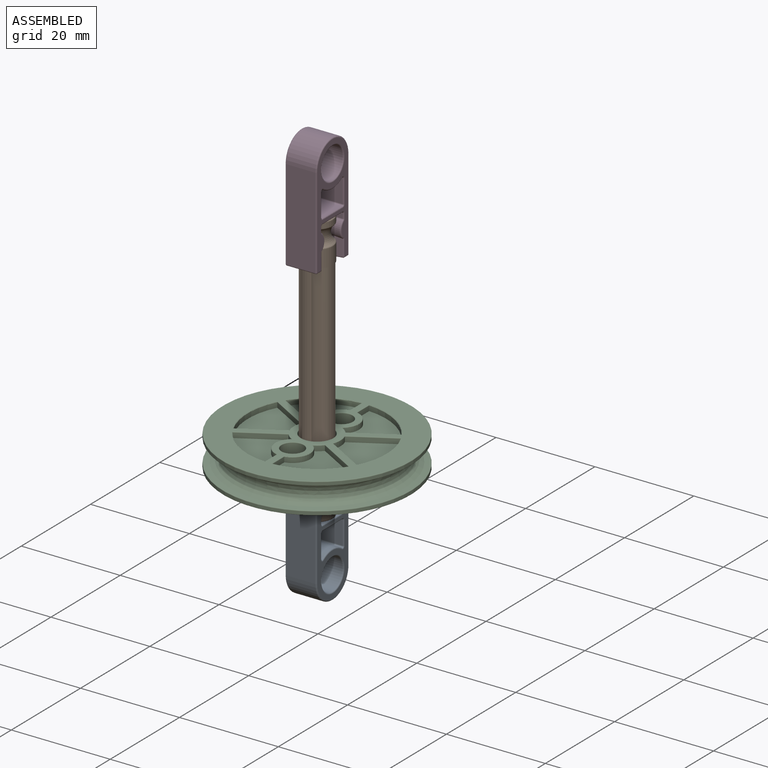
[diagram: assembled view]
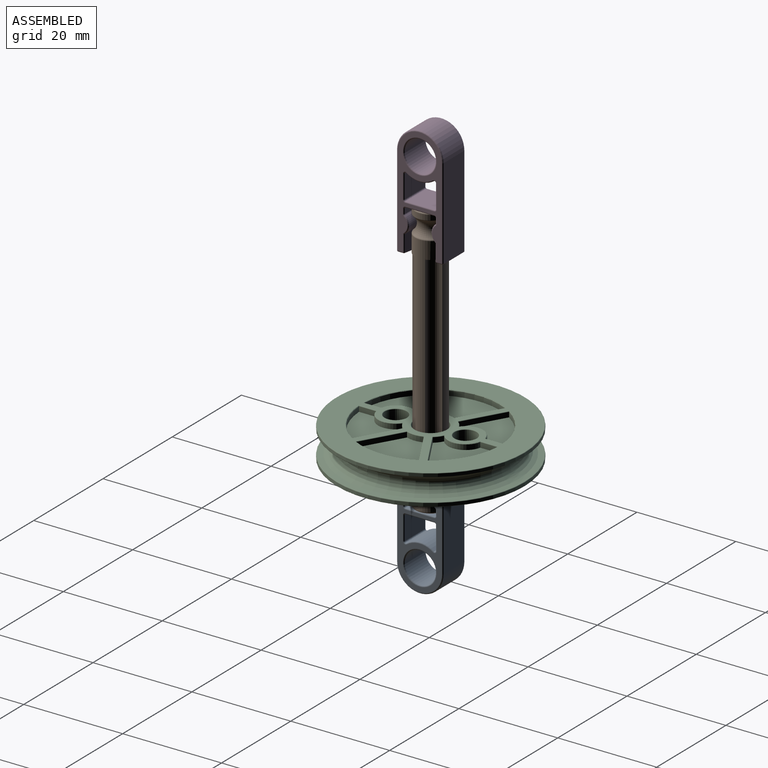
[diagram: assembled view, second angle]
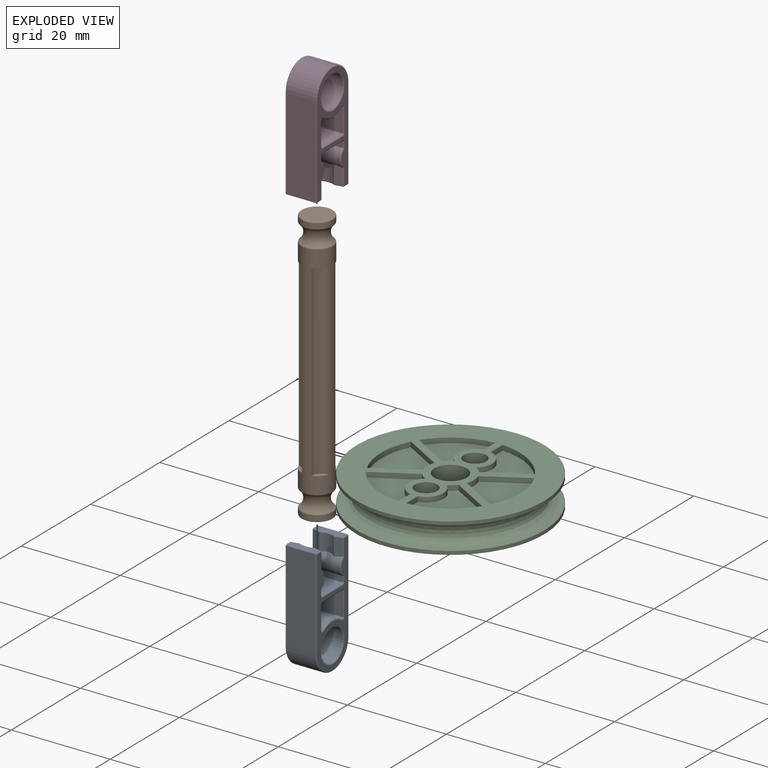
[diagram: exploded view]
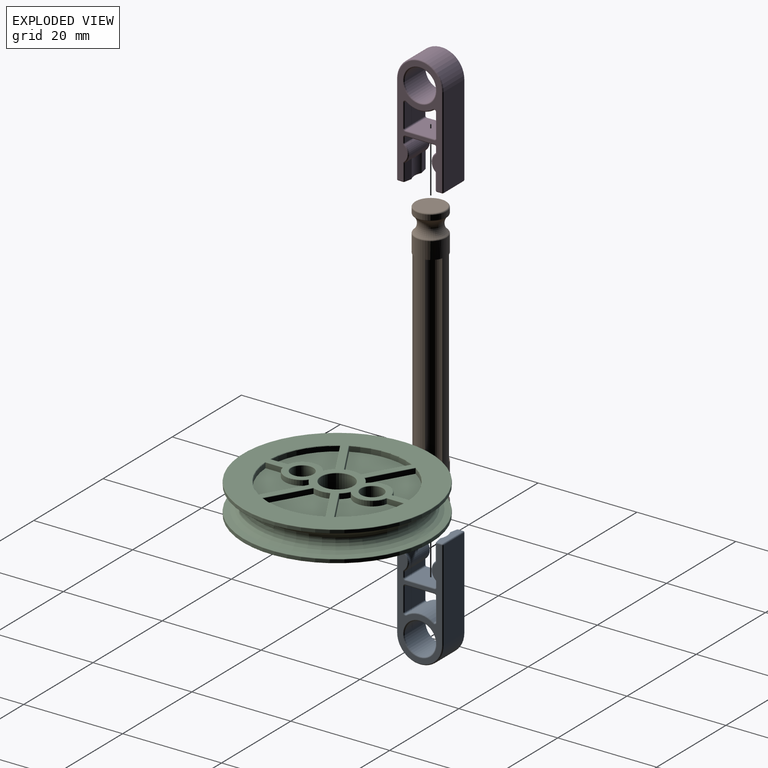
[diagram: exploded view, second angle]
ASSEMBLY  parts=4 mates=2
PART A: 107 faces, bbox 23.7x10.2x6.4 mm
  f0: cylinder r=0.25mm len=4.74mm, axis (1,0,0), area 1.9mm2, adj f1,f7,f11,f12
  f1: torus R=0.51mm, axis (0,0,1), area 0.3mm2, adj f0,f2,f10,f12
  f2: torus R=4.45mm, axis (0,0,-1), area 2.3mm2, adj f1,f3,f9,f12
  f3: torus R=0.51mm, axis (0,0,1), area 0.3mm2, adj f2,f4,f8,f12
  f4: cylinder r=0.25mm len=4.74mm, axis (-1,0,0), area 1.9mm2, adj f3,f5,f12,f97
  f5: torus R=0.51mm, axis (0,0,1), area 0.2mm2, adj f4,f6,f12,f21
  f6: cylinder r=0.25mm len=5.84mm, axis (0,-1,0), area 2.3mm2, adj f5,f7,f12,f22
  f7: torus R=0.51mm, axis (0,0,1), area 0.2mm2, adj f0,f6,f12,f23
  f8: cylinder r=0.25mm len=5.84mm, axis (0,0,1), area 3.3mm2, adj f3,f9,f18,f97
  f9: cylinder r=4.7mm len=5.84mm, axis (0,0,1), area 34.6mm2, adj f2,f8,f10,f19
  f10: cylinder r=0.25mm len=5.84mm, axis (0,0,1), area 3.3mm2, adj f1,f9,f11,f20
  f11: plane 5.84x4.74mm, normal (0,1,0), area 27.7mm2, adj f0,f10,f13,f23
  f12: plane 22.8x8.89mm, normal (0,0,-1), area 68.1mm2, adj f0,f1,f2,f3,f4,f5,f6,f7
  f13: cylinder r=0.25mm len=4.74mm, axis (-1,0,0), area 1.9mm2, adj f11,f14,f20,f24
  f14: torus R=0.51mm, axis (0,0,-1), area 0.2mm2, adj f13,f15,f23,f24
  f15: cylinder r=0.25mm len=5.84mm, axis (0,1,0), area 2.3mm2, adj f14,f16,f22,f24
  f16: torus R=0.51mm, axis (0,0,-1), area 0.2mm2, adj f15,f17,f21,f24
  f17: cylinder r=0.25mm len=4.74mm, axis (1,0,0), area 1.9mm2, adj f16,f18,f24,f97
  f18: torus R=0.51mm, axis (0,0,-1), area 0.3mm2, adj f8,f17,f19,f24
  f19: torus R=4.45mm, axis (0,0,1), area 2.3mm2, adj f9,f18,f20,f24
  f20: torus R=0.51mm, axis (0,0,-1), area 0.3mm2, adj f10,f13,f19,f24
  f21: cylinder r=0.25mm len=5.84mm, axis (0,0,1), area 2.3mm2, adj f5,f16,f22,f97
  f22: plane 5.84x5.84mm, normal (1,0,0), area 34.1mm2, adj f6,f15,f21,f23
  f23: cylinder r=0.25mm len=5.84mm, axis (0,0,1), area 2.3mm2, adj f7,f11,f14,f22
  f24: plane 22.8x8.89mm, normal (0,0,1), area 68.1mm2, adj f13,f14,f15,f16,f17,f18,f19,f20
  f25: torus R=3.43mm, axis (0,0,1), area 8.2mm2, adj f12,f26
  f26: cylinder r=3.17mm len=6.35mm, axis (0,0,1), area 116.5mm2, adj f25,f27
  f27: torus R=3.43mm, axis (0,0,-1), area 8.2mm2, adj f24,f26
  f28: sphere r=0.25mm, area 0.1mm2, adj f63,f77,f78
  f29: sphere r=0.25mm, area 0.1mm2, adj f30,f45,f65
  f30: cylinder r=0.25mm len=3.37mm, axis (-1,0,0), area 1.2mm2, adj f12,f29,f31,f100
  f31: torus R=0.51mm, axis (0,0,-1), area 0mm2, adj f12,f30,f32,f81,f100
  f32: torus R=1.97mm, axis (0,0,-1), area 1.5mm2, adj f12,f31,f33,f82
  f33: torus R=0.51mm, axis (0,0,-1), area 0.1mm2, adj f12,f32,f34,f83
  f34: cylinder r=0.25mm len=1mm, axis (-1,0,0), area 0.4mm2, adj f12,f33,f35,f84
  f35: torus R=0.51mm, axis (0,0,-1), area 0.2mm2, adj f12,f34,f36,f85
  f36: cylinder r=0.25mm len=5.84mm, axis (0,1,0), area 2.3mm2, adj f12,f35,f37,f86
  f37: torus R=0.51mm, axis (0,0,-1), area 0.2mm2, adj f12,f36,f38,f88
  f38: cylinder r=0.25mm len=1mm, axis (1,0,0), area 0.4mm2, adj f12,f37,f39,f89
  f39: torus R=0.51mm, axis (0,0,-1), area 0.1mm2, adj f12,f38,f40,f91
  f40: torus R=1.97mm, axis (0,0,-1), area 1.5mm2, adj f12,f39,f41,f92
  f41: torus R=0.51mm, axis (0,0,-1), area 0mm2, adj f12,f40,f60,f87,f90
  f42: sphere r=0.25mm, area 0.1mm2, adj f46,f51,f63
  f43: sphere r=0.25mm, area 0.1mm2, adj f52,f61,f62
  f44: sphere r=0.25mm, area 0.1mm2, adj f45,f46,f55
  f45: cylinder r=0.25mm len=1.06mm, axis (0,-1,0), area 0.4mm2, adj f12,f29,f44,f95
  f46: cylinder r=0.25mm len=5.84mm, axis (0,0,-1), area 2.3mm2, adj f42,f44,f80,f95
  f47: sphere r=0.25mm, area 0.1mm2, adj f54,f59,f60
  f48: sphere r=0.25mm, area 0.1mm2, adj f49,f52,f58
  f49: cylinder r=0.25mm len=18.35mm, axis (1,0,0), area 7.3mm2, adj f24,f48,f50,f104
  f50: torus R=4.45mm, axis (0,0,1), area 5.8mm2, adj f24,f49,f51,f106
  f51: cylinder r=0.25mm len=18.35mm, axis (-1,0,0), area 7.3mm2, adj f24,f42,f50,f80
  f52: cylinder r=0.25mm len=1.06mm, axis (0,-1,0), area 0.4mm2, adj f24,f43,f48,f96
  f53: sphere r=0.25mm, area 0.1mm2, adj f54,f57,f58
  f54: cylinder r=0.25mm len=1.06mm, axis (0,1,0), area 0.4mm2, adj f12,f47,f53,f96
  f55: cylinder r=0.25mm len=18.35mm, axis (1,0,0), area 7.3mm2, adj f12,f44,f56,f80
  f56: torus R=4.45mm, axis (0,0,-1), area 5.8mm2, adj f12,f55,f57,f106
  f57: cylinder r=0.25mm len=18.35mm, axis (-1,0,0), area 7.3mm2, adj f12,f53,f56,f104
  f58: cylinder r=0.25mm len=5.84mm, axis (0,0,1), area 2.3mm2, adj f48,f53,f96,f104
  f59: cylinder r=0.25mm len=1.57mm, axis (0,0.2,0.98), area 0.6mm2, adj f47,f64,f90,f96
  f60: cylinder r=0.25mm len=3.37mm, axis (1,0,0), area 1.2mm2, adj f12,f41,f47,f90
  f61: cylinder r=0.25mm len=3.37mm, axis (-1,0,0), area 1.2mm2, adj f24,f43,f66,f94
  f62: cylinder r=0.25mm len=1.57mm, axis (0,-0.2,0.98), area 0.6mm2, adj f43,f64,f94,f96
  f63: cylinder r=0.25mm len=1.06mm, axis (0,1,0), area 0.4mm2, adj f24,f28,f42,f95
  f64: torus R=3.43mm, axis (-1,0,0), area 1.2mm2, adj f59,f62,f93,f96
  f65: cylinder r=0.25mm len=1.57mm, axis (0,-0.2,0.98), area 0.6mm2, adj f29,f79,f95,f100
  f66: torus R=0.51mm, axis (0,0,1), area 0mm2, adj f24,f61,f67,f94,f103
  f67: torus R=1.97mm, axis (0,0,1), area 1.5mm2, adj f24,f66,f68,f92
  f68: torus R=0.51mm, axis (0,0,1), area 0.1mm2, adj f24,f67,f69,f91
  f69: cylinder r=0.25mm len=1mm, axis (-1,0,0), area 0.4mm2, adj f24,f68,f70,f89
  f70: torus R=0.51mm, axis (0,0,1), area 0.2mm2, adj f24,f69,f71,f88
  f71: cylinder r=0.25mm len=5.84mm, axis (0,-1,0), area 2.3mm2, adj f24,f70,f72,f86
  f72: torus R=0.51mm, axis (0,0,1), area 0.2mm2, adj f24,f71,f73,f85
  f73: cylinder r=0.25mm len=1mm, axis (1,0,0), area 0.4mm2, adj f24,f72,f74,f84
  f74: torus R=0.51mm, axis (0,0,1), area 0.1mm2, adj f24,f73,f75,f83
  f75: torus R=1.97mm, axis (0,0,1), area 1.5mm2, adj f24,f74,f76,f82
  f76: torus R=0.51mm, axis (0,0,1), area 0mm2, adj f24,f75,f77,f99,f101
  f77: cylinder r=0.25mm len=3.37mm, axis (1,0,0), area 1.2mm2, adj f24,f28,f76,f99
  f78: cylinder r=0.25mm len=1.57mm, axis (0,0.2,0.98), area 0.6mm2, adj f28,f79,f95,f99
  f79: torus R=3.43mm, axis (1,0,0), area 1.2mm2, adj f65,f78,f95,f98
  f80: plane 18.35x5.84mm, normal (0,1,0), area 107.2mm2, adj f46,f51,f55,f106
  f81: cylinder r=0.25mm len=0.19mm, axis (0,0,-1), area 0mm2, adj f31,f82,f100
  f82: cylinder r=2.22mm len=5.84mm, axis (0,0,-1), area 22mm2, adj f32,f75,f81,f83,f98,f99,f100,f101
  f83: cylinder r=0.25mm len=5.84mm, axis (0,0,-1), area 1.3mm2, adj f33,f74,f82,f84
  f84: plane 5.84x1mm, normal (0,-1,0), area 5.9mm2, adj f34,f73,f83,f85
  f85: cylinder r=0.25mm len=5.84mm, axis (0,0,-1), area 2.3mm2, adj f35,f72,f84,f86
  f86: plane 5.84x5.84mm, normal (-1,0,0), area 34.1mm2, adj f36,f71,f85,f88
  f87: cylinder r=0.25mm len=0.19mm, axis (0,0,-1), area 0mm2, adj f41,f90,f92
  f88: cylinder r=0.25mm len=5.84mm, axis (0,0,-1), area 2.3mm2, adj f37,f70,f86,f89
  f89: plane 5.84x1mm, normal (0,1,0), area 5.9mm2, adj f38,f69,f88,f91
  f90: plane 3.66x1.57mm, normal (0,0.98,-0.2), area 5.4mm2, adj f41,f59,f60,f87,f92,f93
  f91: cylinder r=0.25mm len=5.84mm, axis (0,0,-1), area 1.3mm2, adj f39,f68,f89,f92
  f92: cylinder r=2.22mm len=5.84mm, axis (0,0,-1), area 22mm2, adj f40,f67,f87,f90,f91,f93,f94,f103
  f93: cylinder r=3.17mm len=3.61mm, axis (1,0,0), area 10.1mm2, adj f64,f90,f92,f94,f105
  f94: plane 3.66x1.57mm, normal (0,0.98,0.2), area 5.4mm2, adj f61,f62,f66,f92,f93,f103
  f95: plane 5.84x1.35mm, normal (-1,0,0), area 6.8mm2, adj f45,f46,f63,f65,f78,f79
  f96: plane 5.84x1.35mm, normal (-1,0,0), area 6.8mm2, adj f52,f54,f58,f59,f62,f64
  f97: plane 5.84x4.74mm, normal (0,-1,0), area 27.7mm2, adj f4,f8,f17,f21
  f98: cylinder r=3.17mm len=3.61mm, axis (1,0,0), area 10.1mm2, adj f79,f82,f99,f100,f102
  f99: plane 3.66x1.57mm, normal (0,-0.98,0.2), area 5.4mm2, adj f76,f77,f78,f82,f98,f101
  f100: plane 3.66x1.57mm, normal (0,-0.98,-0.2), area 5.4mm2, adj f30,f31,f65,f81,f82,f98
  f101: cylinder r=0.25mm len=0.19mm, axis (0,0,-1), area 0mm2, adj f76,f82,f99
  f102: cylinder r=0.25mm len=1.51mm, axis (0,0,-1), area 0.2mm2, adj f82,f98
  f103: cylinder r=0.25mm len=0.19mm, axis (0,0,-1), area 0mm2, adj f66,f92,f94
  f104: plane 18.35x5.84mm, normal (0,-1,0), area 107.2mm2, adj f49,f57,f58,f106
  f105: cylinder r=0.25mm len=1.51mm, axis (0,0,-1), area 0.2mm2, adj f92,f93
  f106: cylinder r=4.7mm len=9.4mm, axis (0,0,1), area 86.2mm2, adj f50,f56,f80,f104
PART B: 25 faces, bbox 9.8x9.8x54.9 mm
  f0: torus R=2.92mm, axis (0,0,1), area 7.7mm2, adj f1,f2
  f1: cylinder r=3.17mm len=6.35mm, axis (0,0,-1), area 20mm2, adj f0,f3
  f2: plane 5.84x5.84mm, normal (0,0,-1), area 26.8mm2, adj f0
  f3: torus R=2.92mm, axis (0,0,1), area 4.4mm2, adj f1,f8
  f4: torus R=2.92mm, axis (0,0,1), area 4.4mm2, adj f8,f15
  f5: plane 2.05x2.05mm, normal (0,0,1), area 1.8mm2, adj f15,f19
  f6: plane 2.05x2.05mm, normal (0,0,1), area 1.8mm2, adj f15,f18
  f7: plane 2.05x2.05mm, normal (0,0,1), area 1.8mm2, adj f15,f16
  f8: torus R=4.51mm, axis (0,0,1), area 62.5mm2, adj f3,f4
  f9: plane 2.05x2.05mm, normal (0,0,1), area 1.8mm2, adj f15,f17
  f10: torus R=2.92mm, axis (0,0,-1), area 7.7mm2, adj f11,f12
  f11: cylinder r=3.17mm len=6.35mm, axis (0,0,-1), area 20mm2, adj f10,f13
  f12: plane 5.84x5.84mm, normal (0,0,1), area 26.8mm2, adj f10
  f13: torus R=2.92mm, axis (0,0,-1), area 4.4mm2, adj f11,f23
  f14: torus R=2.92mm, axis (0,0,-1), area 4.4mm2, adj f15,f23
  f15: cylinder r=3.17mm len=44.8mm, axis (0,0,-1), area 436.5mm2, adj f4,f5,f6,f7,f9,f14,f16,f17
  f16: cylinder r=2.22mm len=37.95mm, axis (0,0,-1), area 119.9mm2, adj f7,f15,f22
  f17: cylinder r=2.22mm len=37.95mm, axis (0,0,-1), area 119.9mm2, adj f9,f15,f24
  f18: cylinder r=2.22mm len=37.95mm, axis (0,0,-1), area 119.9mm2, adj f6,f15,f21
  f19: cylinder r=2.22mm len=37.95mm, axis (0,0,-1), area 119.9mm2, adj f5,f15,f20
  f20: plane 2.05x2.05mm, normal (0,0,-1), area 1.8mm2, adj f15,f19
  f21: plane 2.05x2.05mm, normal (0,0,-1), area 1.8mm2, adj f15,f18
  f22: plane 2.05x2.05mm, normal (0,0,-1), area 1.8mm2, adj f15,f16
  f23: torus R=4.51mm, axis (0,0,-1), area 62.5mm2, adj f13,f14
  f24: plane 2.05x2.05mm, normal (0,0,-1), area 1.8mm2, adj f15,f17
PART C: 143 faces, bbox 41.1x6.2x41.1 mm
  f0: cylinder r=19mm len=38mm, axis (0,1,0), area 73.7mm2, adj f78,f142
  f1: plane 37.8x37.8mm, normal (0,-1,0), area 624.2mm2, adj f79,f80,f81,f82,f83,f84,f85,f86
  f2: plane 37.8x37.8mm, normal (0,1,0), area 624.2mm2, adj f89,f90,f91,f92,f93,f94,f95,f96
  f3: cylinder r=4.75mm len=1.53mm, axis (0,-1,0), area 2mm2, adj f19,f20,f73,f79
  f4: plane 3.45x1mm, normal (-1,0,0), area 3.4mm2, adj f18,f20,f73,f83
  f5: cylinder r=4.75mm len=1.53mm, axis (0,-1,0), area 2mm2, adj f36,f38,f72,f84
  f6: plane 3.45x1mm, normal (1,0,0), area 3.4mm2, adj f37,f38,f72,f88
  f7: cylinder r=4.75mm len=1.53mm, axis (0,1,0), area 2mm2, adj f40,f41,f71,f89
  f8: plane 3.45x1mm, normal (1,0,0), area 3.4mm2, adj f39,f41,f71,f93
  f9: plane 3.45x1mm, normal (-1,0,0), area 3.4mm2, adj f43,f44,f70,f98
  f10: cylinder r=4.75mm len=1.53mm, axis (0,1,0), area 2mm2, adj f42,f44,f70,f94
  f11: cylinder r=19mm len=38mm, axis (0,1,0), area 72mm2, adj f77,f141
  f12: cylinder r=3.25mm len=6.5mm, axis (0,-1,0), area 122.5mm2, adj f139,f140
  f13: cylinder r=4.75mm len=3.39mm, axis (0,-1,0), area 3.5mm2, adj f14,f16,f17,f137
  f14: plane 8.05x4.64mm, normal (-0.5,0,-0.87), area 9.3mm2, adj f13,f15,f17,f138
  f15: cylinder r=14mm len=12.68mm, axis (0,-1,0), area 13.2mm2, adj f14,f16,f17,f136
  f16: plane 8.05x4.64mm, normal (-0.5,0,0.87), area 9.3mm2, adj f13,f15,f17,f135
  f17: plane 12.68x9.56mm, normal (0,-1,0), area 76.9mm2, adj f13,f14,f15,f16
  f18: cylinder r=14mm len=10.98mm, axis (0,-1,0), area 13.2mm2, adj f4,f19,f20,f82
  f19: plane 8.05x4.64mm, normal (0.5,0,0.87), area 9.3mm2, adj f3,f18,f20,f80
  f20: plane 10.99x10.98mm, normal (0,-1,0), area 63.3mm2, adj f3,f4,f18,f19,f73
  f21: plane 8.05x4.64mm, normal (0.5,0,-0.87), area 9.3mm2, adj f22,f24,f25,f118
  f22: cylinder r=14mm len=10.98mm, axis (0,-1,0), area 13.2mm2, adj f21,f23,f25,f119
  f23: plane 3.45x1mm, normal (-1,0,0), area 3.4mm2, adj f22,f25,f69,f121
  f24: cylinder r=4.75mm len=1.53mm, axis (0,-1,0), area 2mm2, adj f21,f25,f69,f120
  f25: plane 10.99x10.98mm, normal (0,-1,0), area 63.3mm2, adj f21,f22,f23,f24,f69
  f26: plane 8.05x4.64mm, normal (-0.5,0,-0.87), area 9.3mm2, adj f27,f29,f30,f102
  f27: cylinder r=4.75mm len=1.53mm, axis (0,-1,0), area 2mm2, adj f26,f30,f67,f104
  f28: plane 3.45x1mm, normal (1,0,0), area 3.4mm2, adj f29,f30,f67,f103
  f29: cylinder r=14mm len=10.98mm, axis (0,-1,0), area 13.2mm2, adj f26,f28,f30,f101
  f30: plane 10.99x10.98mm, normal (0,-1,0), area 63.3mm2, adj f26,f27,f28,f29,f67
  f31: cylinder r=4.75mm len=3.39mm, axis (0,-1,0), area 3.5mm2, adj f32,f34,f35,f132
  f32: plane 8.05x4.64mm, normal (0.5,0,0.87), area 9.3mm2, adj f31,f33,f35,f134
  f33: cylinder r=14mm len=12.68mm, axis (0,-1,0), area 13.2mm2, adj f32,f34,f35,f133
  f34: plane 8.05x4.64mm, normal (0.5,0,-0.87), area 9.3mm2, adj f31,f33,f35,f131
  f35: plane 12.68x9.56mm, normal (0,-1,0), area 76.9mm2, adj f31,f32,f33,f34
  f36: plane 8.05x4.64mm, normal (-0.5,0,0.87), area 9.3mm2, adj f5,f37,f38,f85
  f37: cylinder r=14mm len=10.98mm, axis (0,-1,0), area 13.2mm2, adj f6,f36,f38,f87
  f38: plane 10.99x10.98mm, normal (0,-1,0), area 63.3mm2, adj f5,f6,f36,f37,f72
  f39: cylinder r=14mm len=10.98mm, axis (0,1,0), area 13.2mm2, adj f8,f40,f41,f92
  f40: plane 8.05x4.64mm, normal (-0.5,0,0.87), area 9.3mm2, adj f7,f39,f41,f90
  f41: plane 10.99x10.98mm, normal (0,1,0), area 63.3mm2, adj f7,f8,f39,f40,f71
  f42: plane 8.05x4.64mm, normal (0.5,0,0.87), area 9.3mm2, adj f10,f43,f44,f95
  f43: cylinder r=14mm len=10.98mm, axis (0,1,0), area 13.2mm2, adj f9,f42,f44,f97
  f44: plane 10.99x10.98mm, normal (0,1,0), area 63.3mm2, adj f9,f10,f42,f43,f70
  f45: plane 8.05x4.64mm, normal (0.5,0,-0.87), area 9.3mm2, adj f46,f48,f49,f113
  f46: cylinder r=4.75mm len=1.53mm, axis (0,1,0), area 2mm2, adj f45,f49,f66,f115
  f47: plane 3.45x1mm, normal (-1,0,0), area 3.4mm2, adj f48,f49,f66,f114
  f48: cylinder r=14mm len=10.98mm, axis (0,1,0), area 13.2mm2, adj f45,f47,f49,f112
  f49: plane 10.99x10.98mm, normal (0,1,0), area 63.3mm2, adj f45,f46,f47,f48,f66
  f50: cylinder r=14mm len=12.68mm, axis (0,1,0), area 13.2mm2, adj f51,f53,f54,f124
  f51: plane 8.05x4.64mm, normal (-0.5,0,-0.87), area 9.3mm2, adj f50,f52,f54,f126
  f52: cylinder r=4.75mm len=3.39mm, axis (0,1,0), area 3.5mm2, adj f51,f53,f54,f125
  f53: plane 8.05x4.64mm, normal (-0.5,0,0.87), area 9.3mm2, adj f50,f52,f54,f123
  f54: plane 12.68x9.56mm, normal (0,1,0), area 76.9mm2, adj f50,f51,f52,f53
  f55: plane 8.05x4.64mm, normal (0.5,0,0.87), area 9.3mm2, adj f56,f58,f59,f127
  f56: cylinder r=4.75mm len=3.39mm, axis (0,1,0), area 3.5mm2, adj f55,f57,f59,f129
  f57: plane 8.05x4.64mm, normal (0.5,0,-0.87), area 9.3mm2, adj f56,f58,f59,f130
  f58: cylinder r=14mm len=12.68mm, axis (0,1,0), area 13.2mm2, adj f55,f57,f59,f128
  f59: plane 12.68x9.56mm, normal (0,1,0), area 76.9mm2, adj f55,f56,f57,f58
  f60: plane 3.45x1mm, normal (1,0,0), area 3.4mm2, adj f63,f64,f65,f109
  f61: cylinder r=4.75mm len=1.53mm, axis (0,1,0), area 2mm2, adj f62,f64,f65,f108
  f62: plane 8.05x4.64mm, normal (-0.5,0,-0.87), area 9.3mm2, adj f61,f63,f64,f106
  f63: cylinder r=14mm len=10.98mm, axis (0,1,0), area 13.2mm2, adj f60,f62,f64,f107
  f64: plane 10.99x10.98mm, normal (0,1,0), area 63.3mm2, adj f60,f61,f62,f63,f65
  f65: cylinder r=3.56mm len=6.3mm, axis (0,-1,0), area 8.1mm2, adj f60,f61,f64,f110
  f66: cylinder r=3.56mm len=6.3mm, axis (0,-1,0), area 8.1mm2, adj f46,f47,f49,f116
  f67: cylinder r=3.56mm len=6.3mm, axis (0,-1,0), area 8.1mm2, adj f27,f28,f30,f105
  f68: cylinder r=2.23mm len=6mm, axis (0,-1,0), area 84.1mm2, adj f100,f117
  f69: cylinder r=3.56mm len=6.3mm, axis (0,-1,0), area 8.1mm2, adj f23,f24,f25,f122
  f70: cylinder r=3.56mm len=6.3mm, axis (0,-1,0), area 8.1mm2, adj f9,f10,f44,f96
  f71: cylinder r=3.56mm len=6.3mm, axis (0,-1,0), area 8.1mm2, adj f7,f8,f41,f91
  f72: cylinder r=3.56mm len=6.3mm, axis (0,-1,0), area 8.1mm2, adj f5,f6,f38,f86
  f73: cylinder r=3.56mm len=6.3mm, axis (0,-1,0), area 8.1mm2, adj f3,f4,f20,f81
  f74: cylinder r=2.23mm len=6mm, axis (0,-1,0), area 84.1mm2, adj f99,f111
  f75: revolved ~37.81x37.81mm, area 437.8mm2, adj f76,f77
  f76: revolved ~37.81x37.81mm, area 875.7mm2, adj f75
  f77: torus R=18.9mm, axis (0,-1,0), area 18.2mm2, adj f11,f75
  f78: torus R=18.9mm, axis (0,-1,0), area 18.2mm2, adj f0
  f79: torus R=4.65mm, axis (0,-1,0), area 0.3mm2, adj f1,f3,f80,f81
  f80: cylinder r=0.1mm len=8.26mm, axis (-0.87,0,0.5), area 1.5mm2, adj f1,f19,f79,f82
  f81: torus R=3.46mm, axis (0,-1,0), area 1.3mm2, adj f1,f73,f79,f83
  f82: torus R=14.1mm, axis (0,-1,0), area 2.1mm2, adj f1,f18,f80,f83
  f83: cylinder r=0.1mm len=3.63mm, axis (0,0,-1), area 0.6mm2, adj f1,f4,f81,f82
  f84: torus R=4.65mm, axis (0,-1,0), area 0.3mm2, adj f1,f5,f85,f86
  f85: cylinder r=0.1mm len=8.26mm, axis (-0.87,0,-0.5), area 1.5mm2, adj f1,f36,f84,f87
  f86: torus R=3.46mm, axis (0,-1,0), area 1.3mm2, adj f1,f72,f84,f88
  f87: torus R=14.1mm, axis (0,-1,0), area 2.1mm2, adj f1,f37,f85,f88
  f88: cylinder r=0.1mm len=3.63mm, axis (0,0,1), area 0.6mm2, adj f1,f6,f86,f87
  f89: torus R=4.65mm, axis (0,-1,0), area 0.3mm2, adj f2,f7,f90,f91
  f90: cylinder r=0.1mm len=8.26mm, axis (-0.87,0,-0.5), area 1.5mm2, adj f2,f40,f89,f92
  f91: torus R=3.46mm, axis (0,-1,0), area 1.3mm2, adj f2,f71,f89,f93
  f92: torus R=14.1mm, axis (0,-1,0), area 2.1mm2, adj f2,f39,f90,f93
  f93: cylinder r=0.1mm len=3.63mm, axis (0,0,1), area 0.6mm2, adj f2,f8,f91,f92
  f94: torus R=4.65mm, axis (0,-1,0), area 0.3mm2, adj f2,f10,f95,f96
  f95: cylinder r=0.1mm len=8.26mm, axis (-0.87,0,0.5), area 1.5mm2, adj f2,f42,f94,f97
  f96: torus R=3.46mm, axis (0,-1,0), area 1.3mm2, adj f2,f70,f94,f98
  f97: torus R=14.1mm, axis (0,-1,0), area 2.1mm2, adj f2,f43,f95,f98
  f98: cylinder r=0.1mm len=3.63mm, axis (0,0,-1), area 0.6mm2, adj f2,f9,f96,f97
  f99: torus R=2.33mm, axis (0,-1,0), area 2.2mm2, adj f2,f74
  f100: torus R=2.33mm, axis (0,-1,0), area 2.2mm2, adj f2,f68
  f101: torus R=14.1mm, axis (0,-1,0), area 2.1mm2, adj f1,f29,f102,f103
  f102: cylinder r=0.1mm len=8.26mm, axis (0.87,0,-0.5), area 1.5mm2, adj f1,f26,f101,f104
  f103: cylinder r=0.1mm len=3.63mm, axis (0,0,1), area 0.6mm2, adj f1,f28,f101,f105
  f104: torus R=4.65mm, axis (0,-1,0), area 0.3mm2, adj f1,f27,f102,f105
  f105: torus R=3.46mm, axis (0,-1,0), area 1.3mm2, adj f1,f67,f103,f104
  f106: cylinder r=0.1mm len=8.26mm, axis (0.87,0,-0.5), area 1.5mm2, adj f2,f62,f107,f108
  f107: torus R=14.1mm, axis (0,-1,0), area 2.1mm2, adj f2,f63,f106,f109
  f108: torus R=4.65mm, axis (0,-1,0), area 0.3mm2, adj f2,f61,f106,f110
  f109: cylinder r=0.1mm len=3.63mm, axis (0,0,1), area 0.6mm2, adj f2,f60,f107,f110
  f110: torus R=3.46mm, axis (0,-1,0), area 1.3mm2, adj f2,f65,f108,f109
  f111: torus R=2.33mm, axis (0,-1,0), area 2.2mm2, adj f1,f74
  f112: torus R=14.1mm, axis (0,-1,0), area 2.1mm2, adj f2,f48,f113,f114
  f113: cylinder r=0.1mm len=8.26mm, axis (0.87,0,0.5), area 1.5mm2, adj f2,f45,f112,f115
  f114: cylinder r=0.1mm len=3.63mm, axis (0,0,-1), area 0.6mm2, adj f2,f47,f112,f116
  f115: torus R=4.65mm, axis (0,-1,0), area 0.3mm2, adj f2,f46,f113,f116
  f116: torus R=3.46mm, axis (0,-1,0), area 1.3mm2, adj f2,f66,f114,f115
  f117: torus R=2.33mm, axis (0,-1,0), area 2.2mm2, adj f1,f68
  f118: cylinder r=0.1mm len=8.26mm, axis (0.87,0,0.5), area 1.5mm2, adj f1,f21,f119,f120
  f119: torus R=14.1mm, axis (0,-1,0), area 2.1mm2, adj f1,f22,f118,f121
  f120: torus R=4.65mm, axis (0,-1,0), area 0.3mm2, adj f1,f24,f118,f122
  f121: cylinder r=0.1mm len=3.63mm, axis (0,0,-1), area 0.6mm2, adj f1,f23,f119,f122
  f122: torus R=3.46mm, axis (0,-1,0), area 1.3mm2, adj f1,f69,f120,f121
  f123: cylinder r=0.1mm len=8.26mm, axis (-0.87,0,-0.5), area 1.5mm2, adj f2,f53,f124,f125
  f124: torus R=14.1mm, axis (0,-1,0), area 2.1mm2, adj f2,f50,f123,f126
  f125: torus R=4.65mm, axis (0,-1,0), area 0.6mm2, adj f2,f52,f123,f126
  f126: cylinder r=0.1mm len=8.26mm, axis (0.87,0,-0.5), area 1.5mm2, adj f2,f51,f124,f125
  f127: cylinder r=0.1mm len=8.26mm, axis (-0.87,0,0.5), area 1.5mm2, adj f2,f55,f128,f129
  f128: torus R=14.1mm, axis (0,-1,0), area 2.1mm2, adj f2,f58,f127,f130
  f129: torus R=4.65mm, axis (0,-1,0), area 0.6mm2, adj f2,f56,f127,f130
  f130: cylinder r=0.1mm len=8.26mm, axis (0.87,0,0.5), area 1.5mm2, adj f2,f57,f128,f129
  f131: cylinder r=0.1mm len=8.26mm, axis (0.87,0,0.5), area 1.5mm2, adj f1,f34,f132,f133
  f132: torus R=4.65mm, axis (0,-1,0), area 0.6mm2, adj f1,f31,f131,f134
  f133: torus R=14.1mm, axis (0,-1,0), area 2.1mm2, adj f1,f33,f131,f134
  f134: cylinder r=0.1mm len=8.26mm, axis (-0.87,0,0.5), area 1.5mm2, adj f1,f32,f132,f133
  f135: cylinder r=0.1mm len=8.26mm, axis (-0.87,0,-0.5), area 1.5mm2, adj f1,f16,f136,f137
  f136: torus R=14.1mm, axis (0,-1,0), area 2.1mm2, adj f1,f15,f135,f138
  f137: torus R=4.65mm, axis (0,-1,0), area 0.6mm2, adj f1,f13,f135,f138
  f138: cylinder r=0.1mm len=8.26mm, axis (0.87,0,-0.5), area 1.5mm2, adj f1,f14,f136,f137
  f139: torus R=3.35mm, axis (0,-1,0), area 3.2mm2, adj f2,f12
  f140: torus R=3.35mm, axis (0,-1,0), area 3.2mm2, adj f1,f12
  f141: torus R=18.9mm, axis (0,-1,0), area 18.7mm2, adj f2,f11
  f142: torus R=18.9mm, axis (0,-1,0), area 18.7mm2, adj f0,f1
PART D: same geometry as A
PLACE A rot(axis=(0,1,0),90deg) t=(5.96,6.71,-35.45)mm
PLACE B t=(5.96,6.71,29.6)mm
PLACE C rot(axis=(1,0,0),90deg) t=(9.14,6.71,-10.46)mm
PLACE D rot(axis=(0,-1,0),90deg) t=(12.31,6.71,39.74)mm
MATE fastened D.f64 <-> B.f11  axis (0,0,-1) through (9.14,6.71,29.6)mm
MATE fastened A.f64 <-> B.f10  axis (0,0,1) through (9.14,6.71,-25.31)mm
